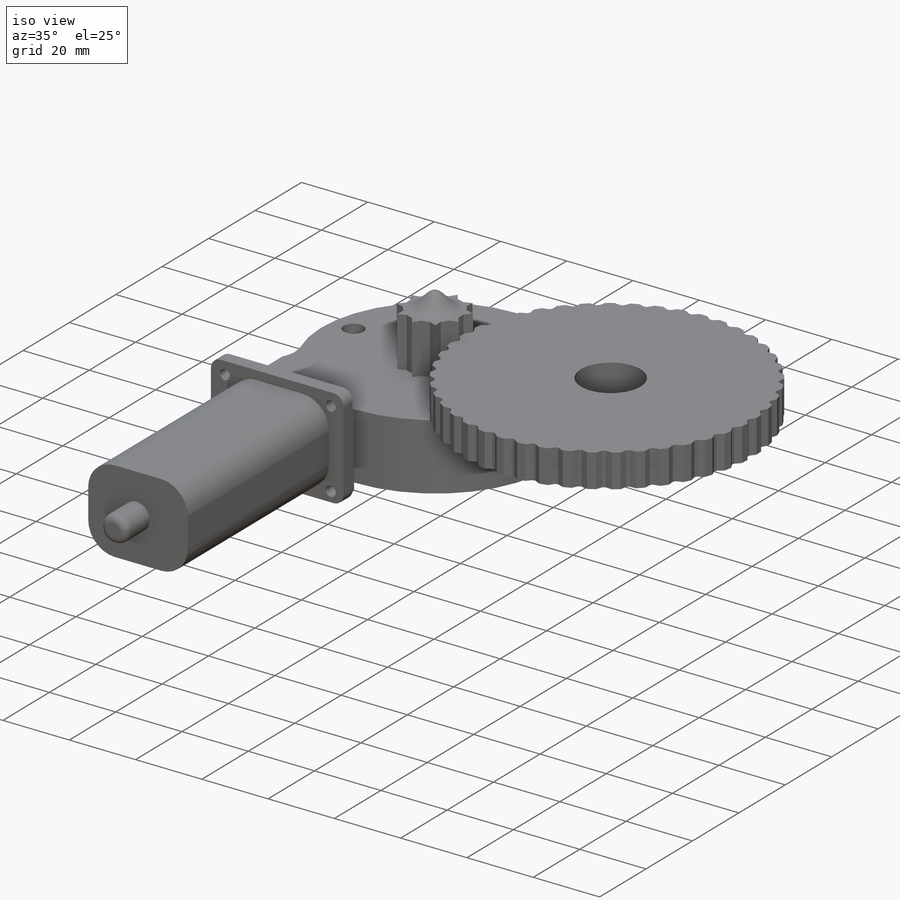
[diagram: iso view]
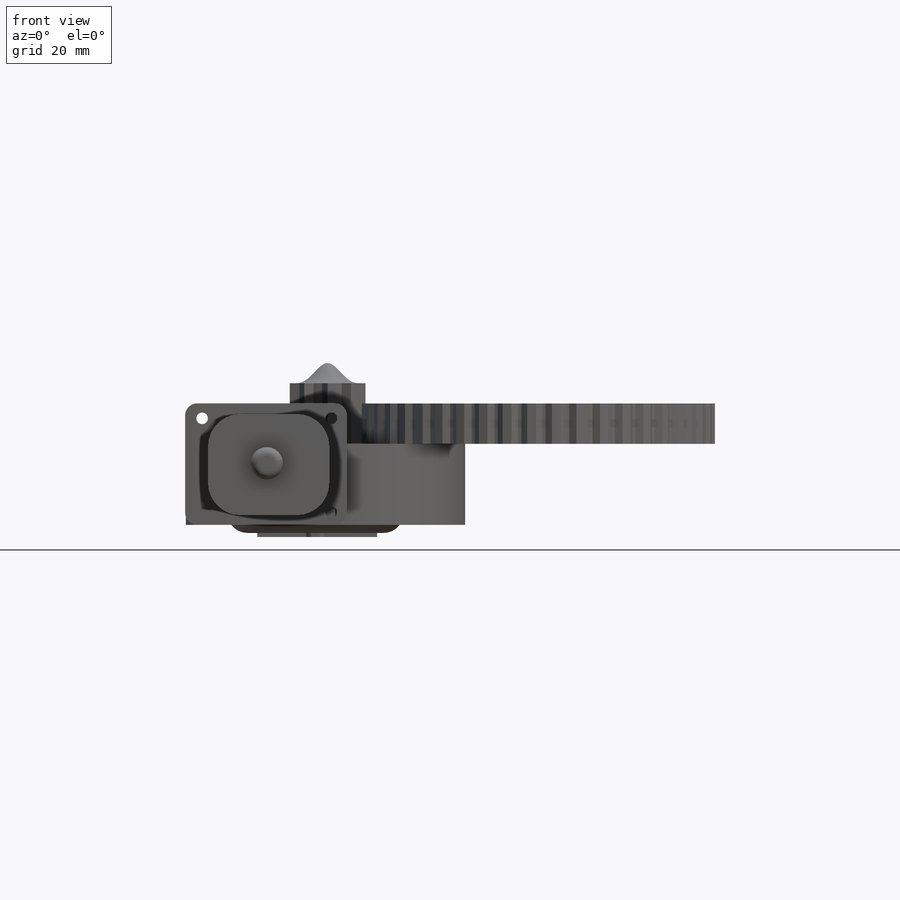
[diagram: front view]
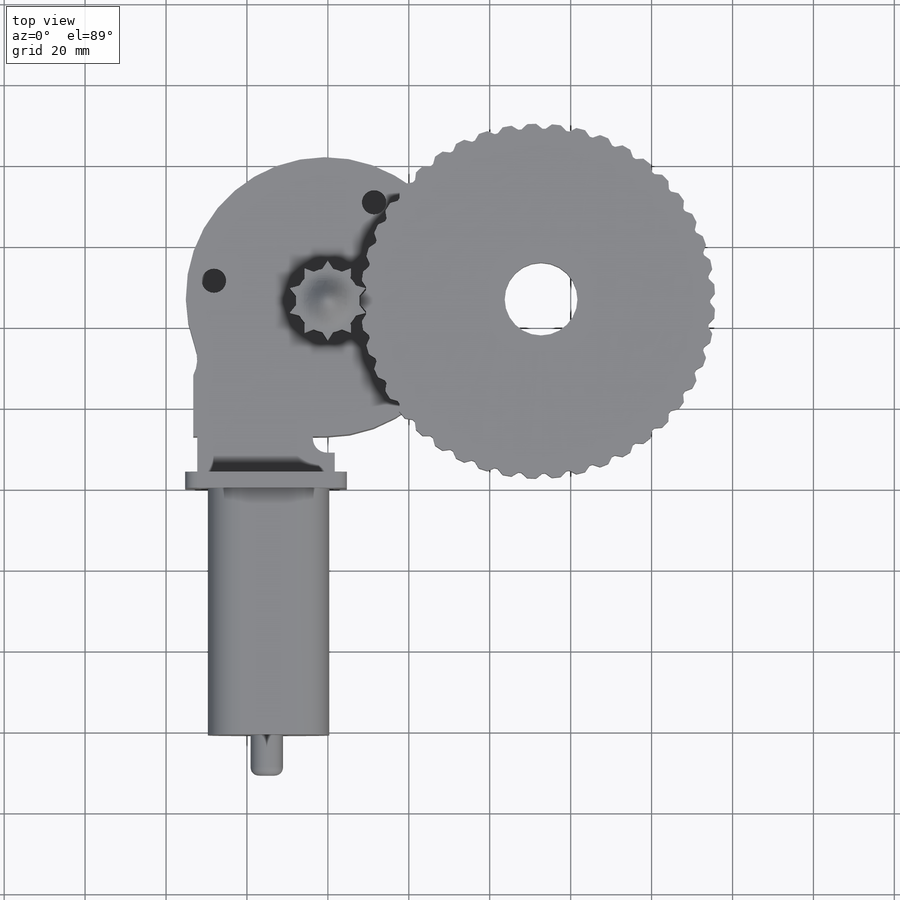
[diagram: top view]
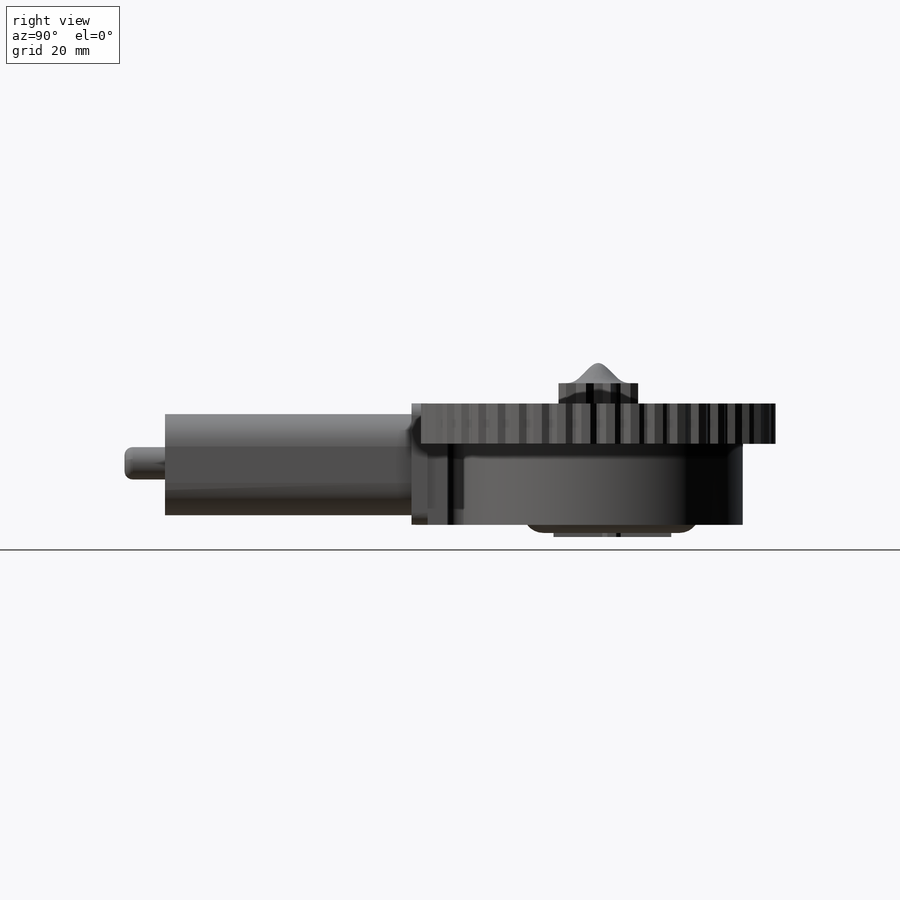
[diagram: right view]
SOLIDWORKS PART (.sldprt)
format: sldprt  version: not decoded by parser v0  size: 858,624 bytes
history: native  units: mm
features: sketch x14, extrude x11, cut_extrude x3, dome x2, fillet x2, material x1 (+11 scaffold rows collapsed)
feature tree (44):
  scaffold x11  (default folders/planes/origin — collapsed)
  material  "Material <not specified>"
  sketch  "Sketch1"  dims[D1=25.0mm]
  extrude  "Boss-Extrude1"  Depth=80mm
  sketch  "Sketch2"  dims[c1.D1=3.0mm c1.D2=2.0mm c2.D1=40.0mm]
  extrude  "Boss-Extrude2"  Depth=1mm
  sketch  "Sketch3"  dims[D1=3.0mm]
  extrude  "Boss-Extrude3"  Depth=3mm
  sketch  "Sketch4"  dims[D1=5.0mm]
  extrude  "Boss-Extrude4"  Depth=6mm
  dome  "Dome1"
  sketch  "Sketch5"  dims[D1=3.5mm]
  extrude  "Boss-Extrude5"  Depth=20mm
  sketch  "Sketch6"  dims[D1=15.0mm]
  extrude  "Boss-Extrude6"  Depth=20mm
  sketch  "Sketch7"  dims[D1=10.0]
  extrude  "Boss-Extrude7"  Depth=35mm
  dome  "Dome2"
  sketch  "Sketch8"
  extrude  "Boss-Extrude8"  Depth=2mm
  fillet  "Fillet1"  Radius=5mm
  sketch  "Sketch9"  dims[D1=~2.664995mm]
  extrude  "Boss-Extrude9"  Depth=1mm
  sketch  "Sketch10"  dims[D1=4.0mm]
  cut_extrude  "Cut-Extrude1"  Depth=5mm
  sketch  "Sketch11"  dims[c1.D1=42.5mm c2.D1=45.0]
  extrude  "Boss-Extrude12"  Depth=10mm
  sketch  "Sketch12"  dims[D1=~11.784661mm]
  cut_extrude  "Cut-Extrude2"  Depth=10mm
  sketch  "Sketch13"
  cut_extrude  "Cut-Extrude3"  Depth=100mm
  sketch  "Sketch14"  dims[D1=~2.084767mm]
  extrude  "Boss-Extrude13"  Depth=10mm
  fillet  "Fillet2"  Radius=2mm
decode coverage: 28 of 32 modeling features carry decoded parameters
note: ~ marks probable driven/reference dimensions
note: suppression state not decoded; provenance and decode notes live in map.json
